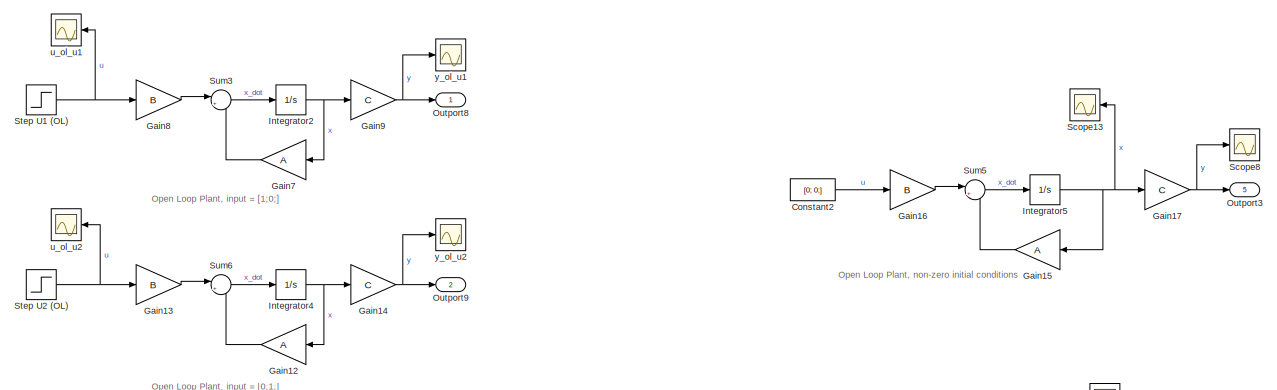
[diagram: root canvas - part 1/2, full width, top band]
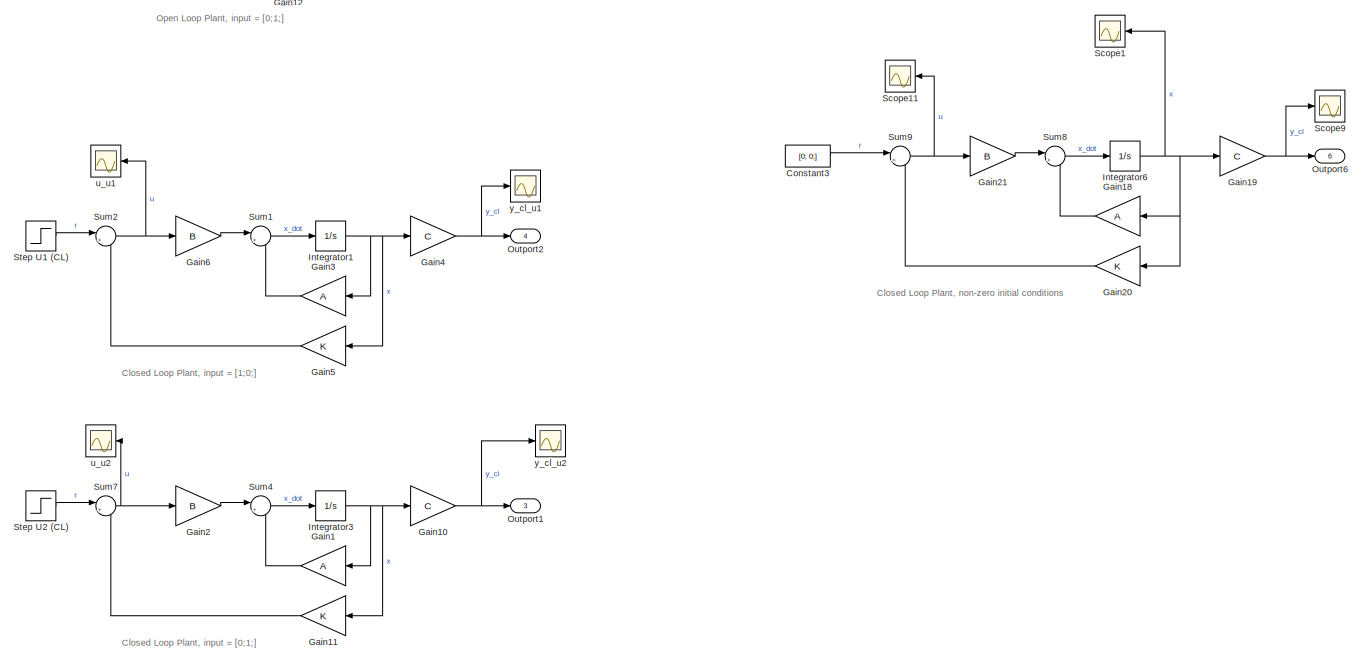
[diagram: root canvas - part 2/2, full width, bottom band]
MODEL slx_534ff66686af
KIND model
CONFIG AbsTol = auto
CONFIG EnableMultiTasking = off
CONFIG FixedStep = auto
CONFIG MaxStep = auto
CONFIG MinStep = auto
CONFIG RelTol = 1e-3
CONFIG SampleTimeConstraint = Unconstrained
CONFIG SolverName = VariableStepAuto
CONFIG StartTime = 0.0
CONFIG StopTime = 30
BLOCK [Constant] Constant2
  Value = [0; 0;]
BLOCK [Constant] Constant3
  Value = [0; 0;]
BLOCK [Gain] Gain1
  Gain = A
  Multiplication = Matrix(K*u)
BLOCK [Gain] Gain10
  Gain = C
  Multiplication = Matrix(K*u)
BLOCK [Gain] Gain11
  Gain = K
  Multiplication = Matrix(K*u)
BLOCK [Gain] Gain12
  Gain = A
  Multiplication = Matrix(K*u)
BLOCK [Gain] Gain13
  Gain = B
  Multiplication = Matrix(K*u)
BLOCK [Gain] Gain14
  Gain = C
  Multiplication = Matrix(K*u)
BLOCK [Gain] Gain15
  Gain = A
  Multiplication = Matrix(K*u)
BLOCK [Gain] Gain16
  Gain = B
  Multiplication = Matrix(K*u)
BLOCK [Gain] Gain17
  Gain = C
  Multiplication = Matrix(K*u)
BLOCK [Gain] Gain18
  Gain = A
  Multiplication = Matrix(K*u)
BLOCK [Gain] Gain19
  Gain = C
  Multiplication = Matrix(K*u)
BLOCK [Gain] Gain2
  Gain = B
  Multiplication = Matrix(K*u)
BLOCK [Gain] Gain20
  Gain = K
  Multiplication = Matrix(K*u)
BLOCK [Gain] Gain21
  Gain = B
  Multiplication = Matrix(K*u)
BLOCK [Gain] Gain3
  Gain = A
  Multiplication = Matrix(K*u)
BLOCK [Gain] Gain4
  Gain = C
  Multiplication = Matrix(K*u)
BLOCK [Gain] Gain5
  Gain = K
  Multiplication = Matrix(K*u)
BLOCK [Gain] Gain6
  Gain = B
  Multiplication = Matrix(K*u)
BLOCK [Gain] Gain7
  Gain = A
  Multiplication = Matrix(K*u)
BLOCK [Gain] Gain8
  Gain = B
  Multiplication = Matrix(K*u)
BLOCK [Gain] Gain9
  Gain = C
  Multiplication = Matrix(K*u)
BLOCK [Integrator] Integrator1
BLOCK [Integrator] Integrator2
BLOCK [Integrator] Integrator3
BLOCK [Integrator] Integrator4
BLOCK [Integrator] Integrator5
  InitialCondition = x_0
BLOCK [Integrator] Integrator6
  InitialCondition = x_0
BLOCK [Outport] Outport1
  Port = 3
BLOCK [Outport] Outport2
  Port = 4
BLOCK [Outport] Outport3
  Port = 5
BLOCK [Outport] Outport6
  Port = 6
BLOCK [Outport] Outport8
BLOCK [Outport] Outport9
  Port = 2
BLOCK [Scope] Scope1
  Floating = off
  NumInputPorts = 1
  ScopeSpecificationString = Simulink.scopes.TimeScopeBlockCfg('CurrentConfiguration', extmgr.ConfigurationSet(extmgr.Configuration('Core','General UI',true),extmgr.Configuration('Core','Source UI',true),extmgr.Configuration('Sources','WiredSimulink',true,'DataLoggingVariableName','ScopeData6'),extmgr.Configuration('Visuals','Time Domain',true,'SerializedDisplays',{struct('MinYLimReal','-912.28148','MaxYLimReal','1324.27752',...<+1913ch>
BLOCK [Scope] Scope11
  Floating = off
  NumInputPorts = 1
  ScopeSpecificationString = Simulink.scopes.TimeScopeBlockCfg('CurrentConfiguration', extmgr.ConfigurationSet(extmgr.Configuration('Core','General UI',true),extmgr.Configuration('Core','Source UI',true),extmgr.Configuration('Sources','WiredSimulink',true,'DataLoggingVariableName','ScopeData2'),extmgr.Configuration('Visuals','Time Domain',true,'SerializedDisplays',{struct('MinYLimReal','-69900.07123','MaxYLimReal','18146.7018...<+1465ch>
BLOCK [Scope] Scope13
  Floating = off
  NumInputPorts = 1
  ScopeSpecificationString = Simulink.scopes.TimeScopeBlockCfg('CurrentConfiguration', extmgr.ConfigurationSet(extmgr.Configuration('Core','General UI',true),extmgr.Configuration('Core','Source UI',true),extmgr.Configuration('Sources','WiredSimulink',true,'DataLoggingVariableName','ScopeData5'),extmgr.Configuration('Visuals','Time Domain',true,'SerializedDisplays',{struct('MinYLimReal','-1.03105','MaxYLimReal','0.67012','YLab...<+1897ch>
BLOCK [Scope] Scope8
  Floating = off
  NumInputPorts = 1
  ScopeSpecificationString = Simulink.scopes.TimeScopeBlockCfg('CurrentConfiguration', extmgr.ConfigurationSet(extmgr.Configuration('Core','General UI',true),extmgr.Configuration('Core','Source UI',true),extmgr.Configuration('Sources','WiredSimulink',true,'DataLoggingVariableName','ScopeData1'),extmgr.Configuration('Visuals','Time Domain',true,'SerializedDisplays',{struct('MinYLimReal','-1.03017','MaxYLimReal','0.66163','YLab...<+1413ch>
BLOCK [Scope] Scope9
  Floating = off
  NumInputPorts = 1
  ScopeSpecificationString = Simulink.scopes.TimeScopeBlockCfg('CurrentConfiguration', extmgr.ConfigurationSet(extmgr.Configuration('Core','General UI',true),extmgr.Configuration('Core','Source UI',true),extmgr.Configuration('Sources','WiredSimulink',true,'DataLoggingVariableName','ScopeData3'),extmgr.Configuration('Visuals','Time Domain',true,'SerializedDisplays',{struct('MinYLimReal','-1.63642','MaxYLimReal','0.52516','YLab...<+1419ch>
BLOCK [Step] Step U1 (CL)
  After = [1; 0;];
  Before = [0; 0;];
  SampleTime = 0
  Time = 0
BLOCK [Step] Step U1 (OL)
  After = [1; 0;];
  Before = [0; 0;];
  SampleTime = 0
  Time = 0
BLOCK [Step] Step U2 (CL)
  After = [0; 1;];
  Before = [0; 0;];
  SampleTime = 0
  Time = 0
BLOCK [Step] Step U2 (OL)
  After = [0; 1;];
  Before = [0; 0;];
  SampleTime = 0
  Time = 0
BLOCK [Sum] Sum1
  Inputs = |++
BLOCK [Sum] Sum2
  Inputs = |+-
BLOCK [Sum] Sum3
  Inputs = |++
BLOCK [Sum] Sum4
  Inputs = |++
BLOCK [Sum] Sum5
  Inputs = |++
BLOCK [Sum] Sum6
  Inputs = |++
BLOCK [Sum] Sum7
  Inputs = |+-
BLOCK [Sum] Sum8
  Inputs = |++
BLOCK [Sum] Sum9
  Inputs = |+-
BLOCK [Scope] u_ol_u1
  Floating = off
  NumInputPorts = 1
  ScopeSpecificationString = Simulink.scopes.TimeScopeBlockCfg('CurrentConfiguration', extmgr.ConfigurationSet(extmgr.Configuration('Core','General UI',true),extmgr.Configuration('Core','Source UI',true),extmgr.Configuration('Sources','WiredSimulink',true,'DataLoggingVariableName','ScopeData5'),extmgr.Configuration('Visuals','Time Domain',true,'SerializedDisplays',{struct('MinYLimReal','-0.125','MaxYLimReal','1.125','YLabelRe...<+1621ch>
BLOCK [Scope] u_ol_u2
  Floating = off
  NumInputPorts = 1
  ScopeSpecificationString = Simulink.scopes.TimeScopeBlockCfg('CurrentConfiguration', extmgr.ConfigurationSet(extmgr.Configuration('Core','General UI',true),extmgr.Configuration('Core','Source UI',true),extmgr.Configuration('Sources','WiredSimulink',true,'DataLoggingVariableName','ScopeData4'),extmgr.Configuration('Visuals','Time Domain',true,'SerializedDisplays',{struct('MinYLimReal','-0.125','MaxYLimReal','1.125','YLabelRe...<+1622ch>
BLOCK [Scope] u_u1
  Floating = off
  NumInputPorts = 1
  ScopeSpecificationString = Simulink.scopes.TimeScopeBlockCfg('CurrentConfiguration', extmgr.ConfigurationSet(extmgr.Configuration('Core','General UI',true),extmgr.Configuration('Core','Source UI',true),extmgr.Configuration('Sources','WiredSimulink',true,'DataLoggingVariableName','ScopeData6'),extmgr.Configuration('Visuals','Time Domain',true,'SerializedDisplays',{struct('MinYLimReal','-30254.2011','MaxYLimReal','116552.4989...<+1665ch>
BLOCK [Scope] u_u2
  Floating = off
  NumInputPorts = 1
  ScopeSpecificationString = Simulink.scopes.TimeScopeBlockCfg('CurrentConfiguration', extmgr.ConfigurationSet(extmgr.Configuration('Core','General UI',true),extmgr.Configuration('Core','Source UI',true),extmgr.Configuration('Sources','WiredSimulink',true,'DataLoggingVariableName','ScopeData3'),extmgr.Configuration('Visuals','Time Domain',true,'SerializedDisplays',{struct('MinYLimReal','-18457.17125','MaxYLimReal','71104.6587...<+1663ch>
BLOCK [Scope] y_cl_u1
  Floating = off
  NumInputPorts = 1
  ScopeSpecificationString = Simulink.scopes.TimeScopeBlockCfg('CurrentConfiguration', extmgr.ConfigurationSet(extmgr.Configuration('Core','General UI',true),extmgr.Configuration('Core','Source UI',true),extmgr.Configuration('Sources','WiredSimulink',true,'DataLoggingVariableName','ScopeData3'),extmgr.Configuration('Visuals','Time Domain',true,'SerializedDisplays',{struct('MinYLimReal','-913.28501','MaxYLimReal','8219.48636',...<+1643ch>
BLOCK [Scope] y_cl_u2
  Floating = off
  NumInputPorts = 1
  ScopeSpecificationString = Simulink.scopes.TimeScopeBlockCfg('CurrentConfiguration', extmgr.ConfigurationSet(extmgr.Configuration('Core','General UI',true),extmgr.Configuration('Core','Source UI',true),extmgr.Configuration('Sources','WiredSimulink',true,'DataLoggingVariableName','ScopeData2'),extmgr.Configuration('Visuals','Time Domain',true,'SerializedDisplays',{struct('MinYLimReal','-557.15309','MaxYLimReal','5014.37776',...<+1657ch>
BLOCK [Scope] y_ol_u1
  Floating = off
  NumInputPorts = 1
  ScopeSpecificationString = Simulink.scopes.TimeScopeBlockCfg('CurrentConfiguration', extmgr.ConfigurationSet(extmgr.Configuration('Core','General UI',true),extmgr.Configuration('Core','Source UI',true),extmgr.Configuration('Sources','WiredSimulink',true,'DataLoggingVariableName','ScopeData5'),extmgr.Configuration('Visuals','Time Domain',true,'SerializedDisplays',{struct('MinYLimReal','-0.49036','MaxYLimReal','0.5053','YLabe...<+1621ch>
BLOCK [Scope] y_ol_u2
  Floating = off
  NumInputPorts = 1
  ScopeSpecificationString = Simulink.scopes.TimeScopeBlockCfg('CurrentConfiguration', extmgr.ConfigurationSet(extmgr.Configuration('Core','General UI',true),extmgr.Configuration('Core','Source UI',true),extmgr.Configuration('Sources','WiredSimulink',true,'DataLoggingVariableName','ScopeData1'),extmgr.Configuration('Visuals','Time Domain',true,'SerializedDisplays',{struct('MinYLimReal','-0.49036','MaxYLimReal','0.5053','YLabe...<+1629ch>
ANNOTATION (root): Closed Loop Plant, input = [0;1;]
ANNOTATION (root): Closed Loop Plant, input = [1;0;]
ANNOTATION (root): Closed Loop Plant, non-zero initial conditions
ANNOTATION (root): Open Loop Plant, input = [0;1;]
ANNOTATION (root): Open Loop Plant, input = [1;0;]
ANNOTATION (root): Open Loop Plant, non-zero initial conditions
LINE Constant2:1 -> Gain16:1
LINE Constant3:1 -> Sum9:1
NET Gain10:1 -> Outport1:1, y_cl_u2:1
LINE Gain11:1 -> Sum7:2
LINE Gain12:1 -> Sum6:2
LINE Gain13:1 -> Sum6:1
NET Gain14:1 -> Outport9:1, y_ol_u2:1
LINE Gain15:1 -> Sum5:2
LINE Gain16:1 -> Sum5:1
NET Gain17:1 -> Outport3:1, Scope8:1
LINE Gain18:1 -> Sum8:2
NET Gain19:1 -> Outport6:1, Scope9:1
LINE Gain1:1 -> Sum4:2
LINE Gain20:1 -> Sum9:2
LINE Gain21:1 -> Sum8:1
LINE Gain2:1 -> Sum4:1
LINE Gain3:1 -> Sum1:2
NET Gain4:1 -> Outport2:1, y_cl_u1:1
LINE Gain5:1 -> Sum2:2
LINE Gain6:1 -> Sum1:1
LINE Gain7:1 -> Sum3:2
LINE Gain8:1 -> Sum3:1
NET Gain9:1 -> Outport8:1, y_ol_u1:1
NET Integrator1:1 -> Gain3:1, Gain4:1, Gain5:1
NET Integrator2:1 -> Gain7:1, Gain9:1
NET Integrator3:1 -> Gain10:1, Gain11:1, Gain1:1
NET Integrator4:1 -> Gain12:1, Gain14:1
NET Integrator5:1 -> Gain15:1, Gain17:1, Scope13:1
NET Integrator6:1 -> Gain18:1, Gain19:1, Gain20:1, Scope1:1
LINE Step U1 (CL):1 -> Sum2:1
NET Step U1 (OL):1 -> Gain8:1, u_ol_u1:1
LINE Step U2 (CL):1 -> Sum7:1
NET Step U2 (OL):1 -> Gain13:1, u_ol_u2:1
LINE Sum1:1 -> Integrator1:1
NET Sum2:1 -> Gain6:1, u_u1:1
LINE Sum3:1 -> Integrator2:1
LINE Sum4:1 -> Integrator3:1
LINE Sum5:1 -> Integrator5:1
LINE Sum6:1 -> Integrator4:1
NET Sum7:1 -> Gain2:1, u_u2:1
LINE Sum8:1 -> Integrator6:1
NET Sum9:1 -> Gain21:1, Scope11:1
note: NET lines group one-source signal fan-out (src -> all destinations, sorted); 1:1 wires keep LINE
